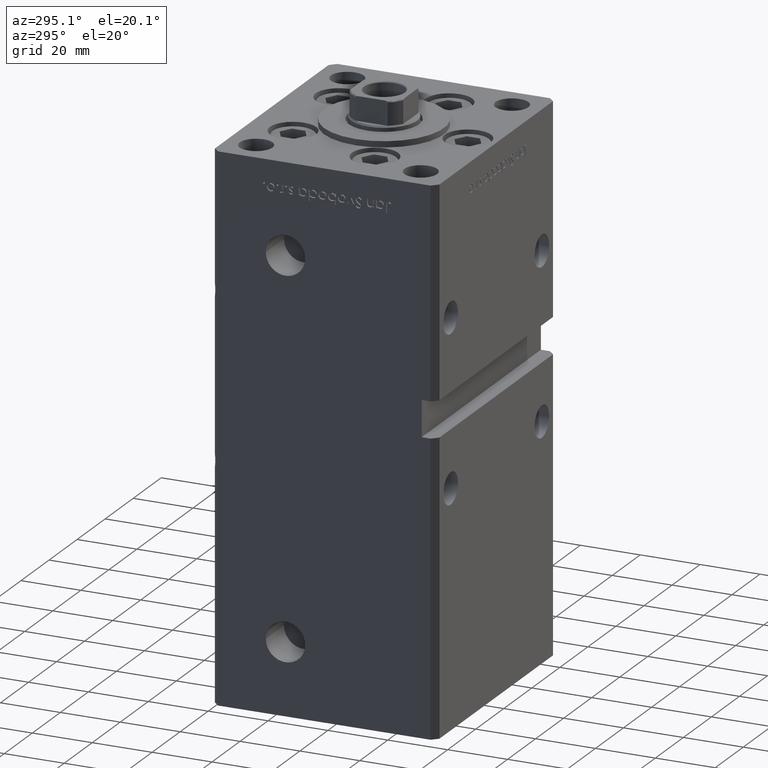
[diagram: clean part render]
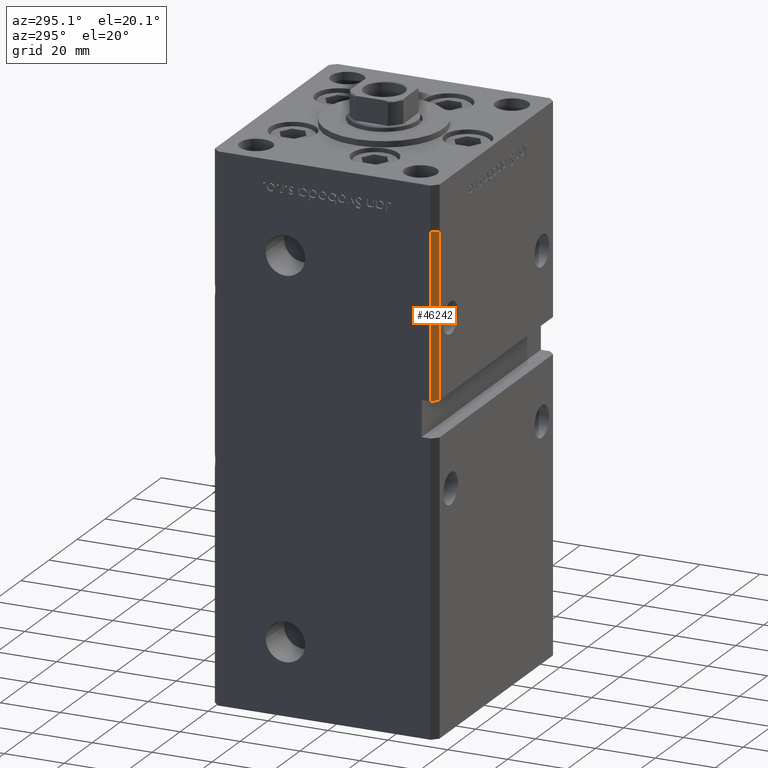
[diagram: same view with one face highlighted and labeled with its STEP entity id]
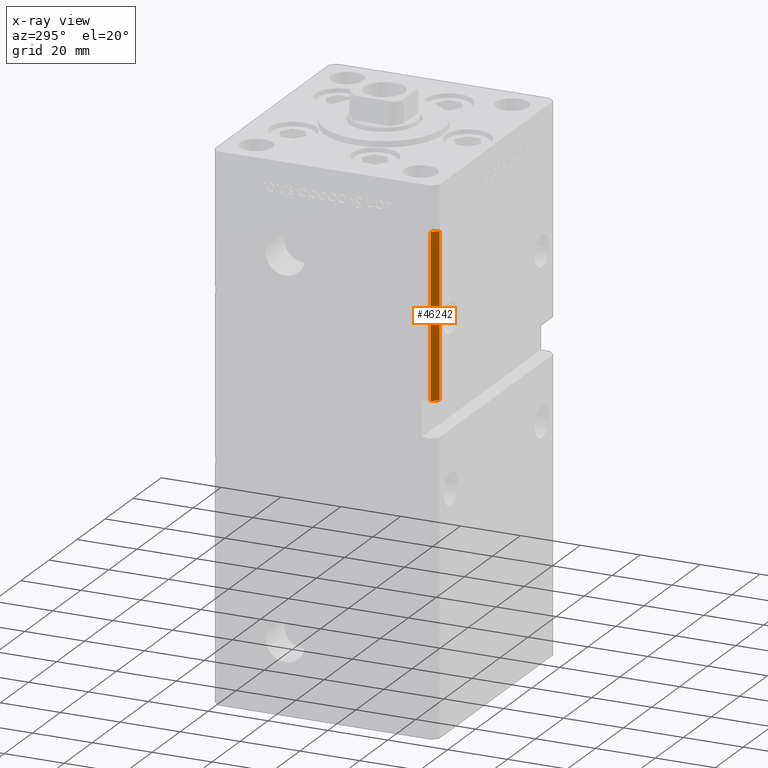
[diagram: x-ray of the same camera — body ghosted, the highlighted face saturated]
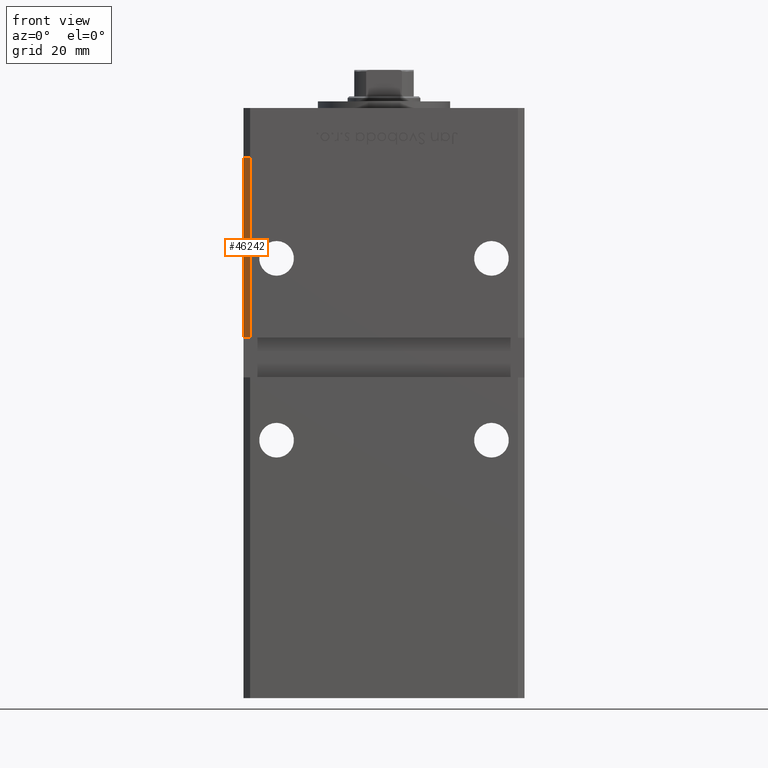
[diagram: same view with one face highlighted and labeled with its STEP entity id]
A machine part, auxiliary view. The second image highlights one B-rep face of the part: STEP entity #46242.
The next image is the same camera in x-ray: the body ghosted, the highlighted face saturated — about 0% of this face is hidden behind the body in this view.
A second angle (front view) of the same face is appended — the face is thin or edge-on in the first view.
In plain terms, the highlighted planar face has unit normal (0.7071, 0.7071, 0).
Its self-contained STEP definition (entity closure, byte-faithful):
#2 = AXIS2_PLACEMENT_3D ( 'NONE', #4859, #21220, #835 ) ;
#669 = CARTESIAN_POINT ( 'NONE',  ( -42.49999999999998579, -35.50000000000001421, 94.00000000000000000 ) ) ;
#835 = DIRECTION ( 'NONE',  ( -0.7071067811865474617, 0.7071067811865474617, 0.000000000000000000 ) ) ;
#1868 = CARTESIAN_POINT ( 'NONE',  ( -40.49999999999998579, -37.50000000000000711, 148.5000000000000000 ) ) ;
#3440 = ORIENTED_EDGE ( 'NONE', *, *, #43114, .T. ) ;
#4674 = VERTEX_POINT ( 'NONE', #34978 ) ;
#4859 = CARTESIAN_POINT ( 'NONE',  ( -42.49999999999998579, -35.50000000000000711, 148.5000000000000000 ) ) ;
#5217 = CARTESIAN_POINT ( 'NONE',  ( -42.49999999999998579, -35.50000000000000711, 94.00000000000000000 ) ) ;
#6781 = LINE ( 'NONE', #39038, #48324 ) ;
#8144 = EDGE_CURVE ( 'NONE', #19039, #27152, #12209, .T. ) ;
#8361 = ORIENTED_EDGE ( 'NONE', *, *, #8144, .F. ) ;
#9653 = CARTESIAN_POINT ( 'NONE',  ( -40.49999999999998579, -37.50000000000000711, 94.00000000000000000 ) ) ;
#11086 = DIRECTION ( 'NONE',  ( 0.7071067811865474617, -0.7071067811865474617, 0.000000000000000000 ) ) ;
#12209 = LINE ( 'NONE', #36141, #18188 ) ;
#13970 = ORIENTED_EDGE ( 'NONE', *, *, #15962, .F. ) ;
#15712 = LINE ( 'NONE', #16227, #26505 ) ;
#15962 = EDGE_CURVE ( 'NONE', #4674, #19039, #6781, .T. ) ;
#16227 = CARTESIAN_POINT ( 'NONE',  ( -42.49999999999998579, -35.50000000000000711, 148.5000000000000000 ) ) ;
#16883 = VECTOR ( 'NONE', #21846, 1000.000000000000114 ) ;
#18188 = VECTOR ( 'NONE', #19209, 1000.000000000000000 ) ;
#19039 = VERTEX_POINT ( 'NONE', #1868 ) ;
#19209 = DIRECTION ( 'NONE',  ( -0.000000000000000000, -0.000000000000000000, -1.000000000000000000 ) ) ;
#21220 = DIRECTION ( 'NONE',  ( 0.7071067811865475727, 0.7071067811865475727, -0.000000000000000000 ) ) ;
#21846 = DIRECTION ( 'NONE',  ( 0.7071067811865474617, -0.7071067811865474617, 0.000000000000000000 ) ) ;
#24912 = ORIENTED_EDGE ( 'NONE', *, *, #33222, .T. ) ;
#25275 = PLANE ( 'NONE',  #2 ) ;
#26505 = VECTOR ( 'NONE', #47730, 1000.000000000000000 ) ;
#27152 = VERTEX_POINT ( 'NONE', #9653 ) ;
#29303 = FACE_OUTER_BOUND ( 'NONE', #50893, .T. ) ;
#33222 = EDGE_CURVE ( 'NONE', #44130, #27152, #37207, .T. ) ;
#34978 = CARTESIAN_POINT ( 'NONE',  ( -42.49999999999998579, -35.50000000000000711, 148.5000000000000000 ) ) ;
#36141 = CARTESIAN_POINT ( 'NONE',  ( -40.49999999999998579, -37.50000000000000711, 148.5000000000000000 ) ) ;
#37207 = LINE ( 'NONE', #5217, #16883 ) ;
#39038 = CARTESIAN_POINT ( 'NONE',  ( -42.49999999999998579, -35.50000000000000711, 148.5000000000000000 ) ) ;
#43114 = EDGE_CURVE ( 'NONE', #4674, #44130, #15712, .T. ) ;
#44130 = VERTEX_POINT ( 'NONE', #669 ) ;
#46242 = ADVANCED_FACE ( 'NONE', ( #29303 ), #25275, .F. ) ;
#47730 = DIRECTION ( 'NONE',  ( -0.000000000000000000, -0.000000000000000000, -1.000000000000000000 ) ) ;
#48324 = VECTOR ( 'NONE', #11086, 1000.000000000000114 ) ;
#50893 = EDGE_LOOP ( 'NONE', ( #3440, #24912, #8361, #13970 ) ) ;